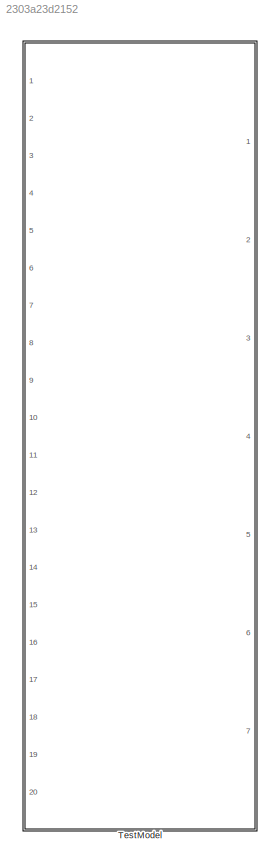
MODEL slx_2303a23d2152
KIND model
CONFIG AbsTol = auto
CONFIG EnableMultiTasking = off
CONFIG FixedStep = auto
CONFIG MaxStep = auto
CONFIG MinStep = auto
CONFIG RelTol = 1e-3
CONFIG SampleTimeConstraint = Unconstrained
CONFIG Solver = VariableStepAuto
CONFIG SolverName = VariableStepAuto
CONFIG StartTime = 0.0
CONFIG StopTime = 10.0
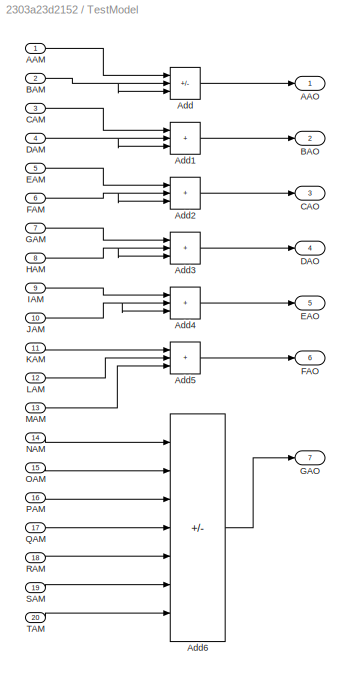
BLOCK [SubSystem] TestModel
  Ports = [20, 7]
  RequestExecContextInheritance = off
BLOCK [Inport] TestModel/AAM
BLOCK [Outport] TestModel/AAO
BLOCK [Sum] TestModel/Add
  IconShape = rectangular
  Inputs = -++
  Ports = [3, 1]
BLOCK [Sum] TestModel/Add1
  IconShape = rectangular
  Inputs = +++
  Ports = [3, 1]
BLOCK [Sum] TestModel/Add2
  IconShape = rectangular
  Inputs = +++
  Ports = [3, 1]
BLOCK [Sum] TestModel/Add3
  IconShape = rectangular
  Inputs = +++
  Ports = [3, 1]
BLOCK [Sum] TestModel/Add4
  IconShape = rectangular
  Inputs = +++
  Ports = [3, 1]
BLOCK [Sum] TestModel/Add5
  IconShape = rectangular
  Inputs = +++
  Ports = [3, 1]
BLOCK [Sum] TestModel/Add6
  IconShape = rectangular
  Inputs = +++----
  Ports = [7, 1]
BLOCK [Inport] TestModel/BAM
  Port = 2
BLOCK [Outport] TestModel/BAO
  Port = 2
BLOCK [Inport] TestModel/CAM
  Port = 3
BLOCK [Outport] TestModel/CAO
  Port = 3
BLOCK [Inport] TestModel/DAM
  Port = 4
BLOCK [Outport] TestModel/DAO
  Port = 4
BLOCK [Inport] TestModel/EAM
  Port = 5
BLOCK [Outport] TestModel/EAO
  Port = 5
BLOCK [Inport] TestModel/FAM
  Port = 6
BLOCK [Outport] TestModel/FAO
  Port = 6
BLOCK [Inport] TestModel/GAM
  Port = 7
BLOCK [Outport] TestModel/GAO
  Port = 7
BLOCK [Inport] TestModel/HAM
  Port = 8
BLOCK [Inport] TestModel/IAM
  Port = 9
BLOCK [Inport] TestModel/JAM
  Port = 10
BLOCK [Inport] TestModel/KAM
  Port = 11
BLOCK [Inport] TestModel/LAM
  Port = 12
BLOCK [Inport] TestModel/MAM
  Port = 13
BLOCK [Inport] TestModel/NAM
  Port = 14
BLOCK [Inport] TestModel/OAM
  Port = 15
BLOCK [Inport] TestModel/PAM
  Port = 16
BLOCK [Inport] TestModel/QAM
  Port = 17
BLOCK [Inport] TestModel/RAM
  Port = 18
BLOCK [Inport] TestModel/SAM
  Port = 19
BLOCK [Inport] TestModel/TAM
  Port = 20
LINE TestModel/AAM:1 -> TestModel/Add:1
LINE TestModel/Add1:1 -> TestModel/BAO:1
LINE TestModel/Add2:1 -> TestModel/CAO:1
LINE TestModel/Add3:1 -> TestModel/DAO:1
LINE TestModel/Add4:1 -> TestModel/EAO:1
LINE TestModel/Add5:1 -> TestModel/FAO:1
LINE TestModel/Add6:1 -> TestModel/GAO:1
LINE TestModel/Add:1 -> TestModel/AAO:1
NET TestModel/BAM:1 -> TestModel/Add:2, TestModel/Add:3
LINE TestModel/CAM:1 -> TestModel/Add1:1
NET TestModel/DAM:1 -> TestModel/Add1:2, TestModel/Add1:3
LINE TestModel/EAM:1 -> TestModel/Add2:1
NET TestModel/FAM:1 -> TestModel/Add2:2, TestModel/Add2:3
LINE TestModel/GAM:1 -> TestModel/Add3:1
NET TestModel/HAM:1 -> TestModel/Add3:2, TestModel/Add3:3
LINE TestModel/IAM:1 -> TestModel/Add4:1
NET TestModel/JAM:1 -> TestModel/Add4:2, TestModel/Add4:3
LINE TestModel/KAM:1 -> TestModel/Add5:1
LINE TestModel/LAM:1 -> TestModel/Add5:2
LINE TestModel/MAM:1 -> TestModel/Add5:3
LINE TestModel/NAM:1 -> TestModel/Add6:1
LINE TestModel/OAM:1 -> TestModel/Add6:2
LINE TestModel/PAM:1 -> TestModel/Add6:3
LINE TestModel/QAM:1 -> TestModel/Add6:4
LINE TestModel/RAM:1 -> TestModel/Add6:5
LINE TestModel/SAM:1 -> TestModel/Add6:6
LINE TestModel/TAM:1 -> TestModel/Add6:7
note: NET lines group one-source signal fan-out (src -> all destinations, sorted); 1:1 wires keep LINE
